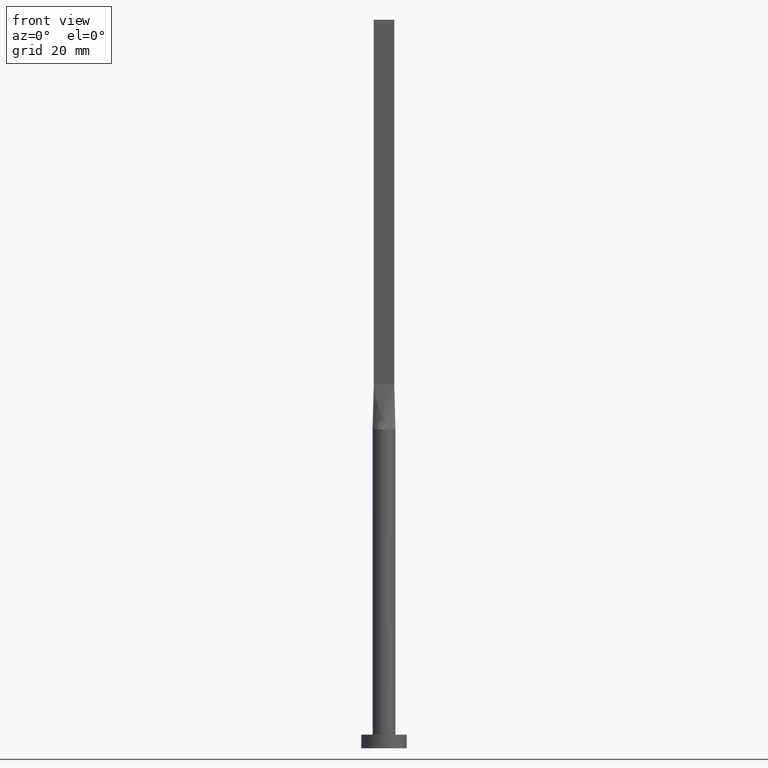
[diagram: clean part render]
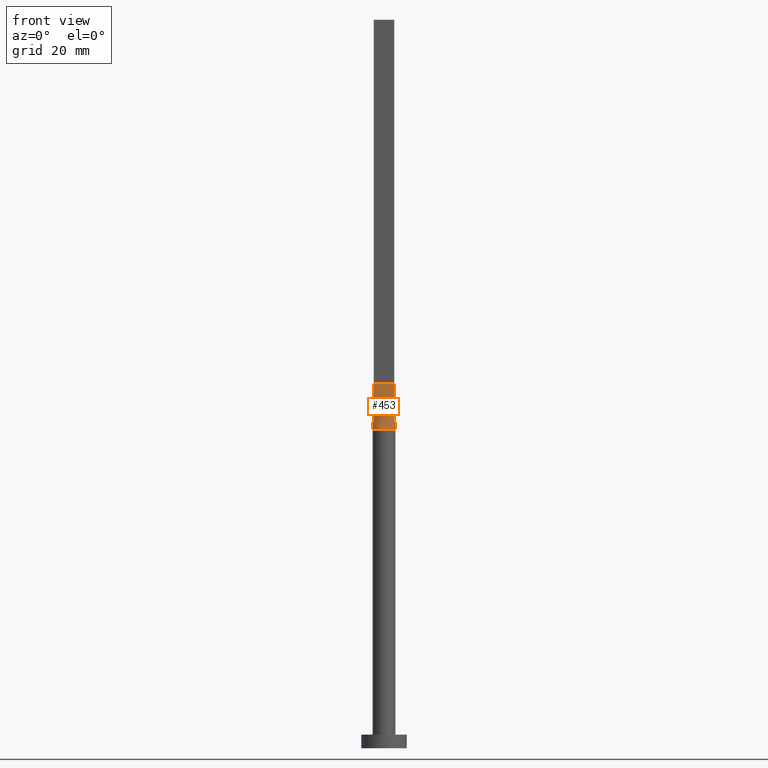
[diagram: same view with one face highlighted and labeled with its STEP entity id]
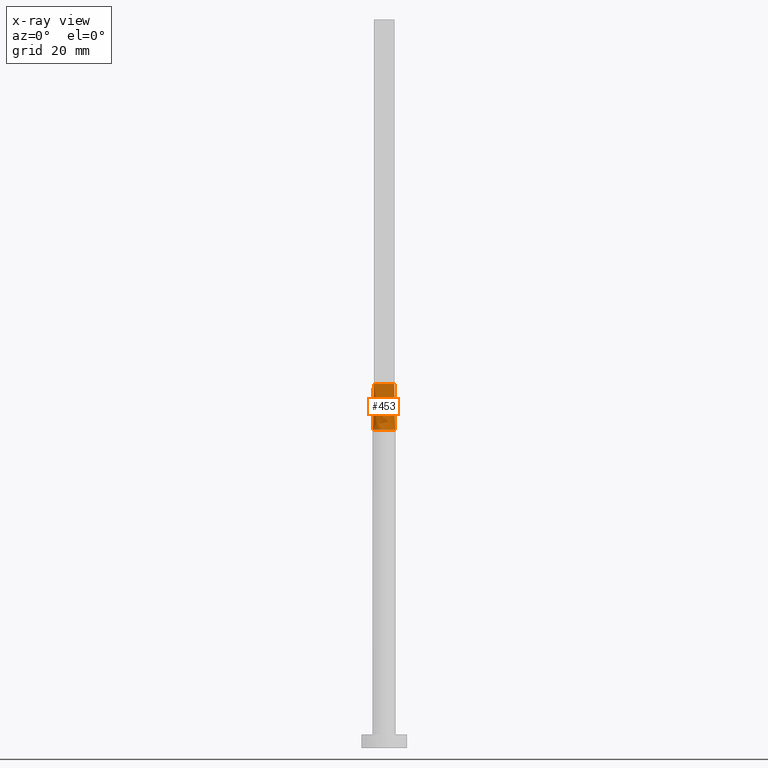
[diagram: x-ray of the same camera — body ghosted, the highlighted face saturated]
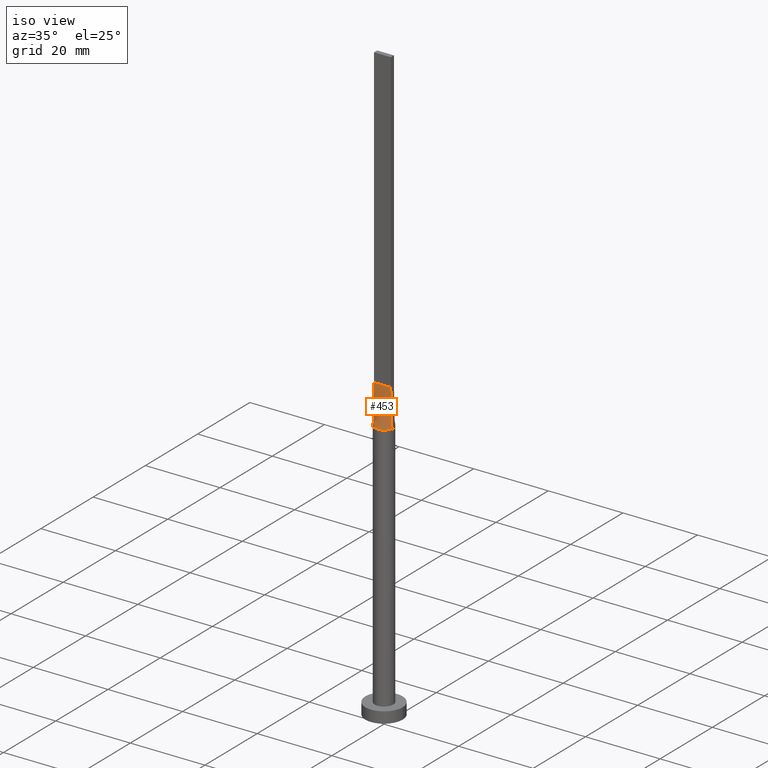
[diagram: same view with one face highlighted and labeled with its STEP entity id]
A machine part, front view. The second image highlights one B-rep face of the part: STEP entity #453.
The next image is the same camera in x-ray: the body ghosted, the highlighted face saturated — about 0% of this face is hidden behind the body in this view.
A second angle (iso view) of the same face is appended — the face is thin or edge-on in the first view.
In plain terms, the highlighted face is a freeform B-spline surface patch.
Its self-contained STEP definition (entity closure, byte-faithful):
#1 = ORIENTED_EDGE ( 'NONE', *, *, #532, .T. ) ;
#12 = CARTESIAN_POINT ( 'NONE',  ( 2.283437435282019479, -1.045786430836911363, 70.00000000000001421 ) ) ;
#24 = CARTESIAN_POINT ( 'NONE',  ( 1.466504377161500727, -2.043814966248090226, 70.00000000000000000 ) ) ;
#31 = ORIENTED_EDGE ( 'NONE', *, *, #506, .T. ) ;
#32 = VECTOR ( 'NONE', #36, 1000.000000000000114 ) ;
#36 = DIRECTION ( 'NONE',  ( -0.01655630387018623695, -0.004415014365382971366, -0.9998531874481929593 ) ) ;
#56 = EDGE_CURVE ( 'NONE', #501, #498, #107, .T. ) ;
#59 = CARTESIAN_POINT ( 'NONE',  ( 0.7499999999999995559, -0.5999999999999996447, 79.99999999999998579 ) ) ;
#68 = CARTESIAN_POINT ( 'NONE',  ( 0.3201159637850000128, -2.500000000000000888, 70.00000000000000000 ) ) ;
#70 = CARTESIAN_POINT ( 'NONE',  ( -0.7500000000000004441, -0.5999999999999994227, 79.99999999999998579 ) ) ;
#75 = LINE ( 'NONE', #390, #32 ) ;
#82 = DIRECTION ( 'NONE',  ( 0.000000000000000000, 0.000000000000000000, 1.000000000000000000 ) ) ;
#102 = CARTESIAN_POINT ( 'NONE',  ( -0.9375000000000004441, -0.5999999999999994227, 79.99999999999998579 ) ) ;
#104 = CARTESIAN_POINT ( 'NONE',  ( -1.312500000000000222, -0.5999999999999994227, 79.99999999999998579 ) ) ;
#105 = CARTESIAN_POINT ( 'NONE',  ( -2.250000000000000000, -0.5999999999999994227, 80.00000000000000000 ) ) ;
#107 = LINE ( 'NONE', #105, #434 ) ;
#109 = CIRCLE ( 'NONE', #530, 2.500000000000000000 ) ;
#110 = CARTESIAN_POINT ( 'NONE',  ( -2.415587349003116113, -0.6441566264008301568, 70.00000000000000000 ) ) ;
#116 = VECTOR ( 'NONE', #265, 1000.000000000000114 ) ;
#124 = EDGE_LOOP ( 'NONE', ( #132, #1, #544, #31 ) ) ;
#128 = CARTESIAN_POINT ( 'NONE',  ( -2.415759998437587708, -0.6442033382925431706, 70.00000000000000000 ) ) ;
#132 = ORIENTED_EDGE ( 'NONE', *, *, #522, .T. ) ;
#134 = B_SPLINE_SURFACE_WITH_KNOTS ( 'NONE', 3, 1, ( 
 ( #110, #149 ),
 ( #159, #504 ),
 ( #330, #332 ),
 ( #472, #507 ),
 ( #243, #104 ),
 ( #202, #102 ),
 ( #286, #70 ),
 ( #204, #380 ),
 ( #249, #291 ),
 ( #68, #559 ),
 ( #509, #253 ),
 ( #426, #59 ),
 ( #24, #200 ),
 ( #556, #154 ),
 ( #515, #464 ),
 ( #12, #335 ),
 ( #251, #548 ),
 ( #470, #512 ) ),
 .UNSPECIFIED., .F., .F., .F.,
 ( 4, 2, 2, 2, 2, 2, 2, 2, 4 ),
 ( 2, 2 ),
 ( 0.000000000000000000, 0.1250000000000000000, 0.2500000000000000000, 0.3750000000000000000, 0.4999999999999999445, 0.6250000000000000000, 0.7500000000000000000, 0.8750000000000000000, 1.000000000000000000 ),
 ( 0.000000000000000000, 1.000000000000000000 ),
 .UNSPECIFIED. ) ;
#149 = CARTESIAN_POINT ( 'NONE',  ( -2.250000000000000000, -0.5999999999999994227, 80.00000000000000000 ) ) ;
#154 = CARTESIAN_POINT ( 'NONE',  ( 1.312499999999999778, -0.5999999999999997558, 79.99999999999998579 ) ) ;
#159 = CARTESIAN_POINT ( 'NONE',  ( -2.363720129086103405, -0.8386587010896268124, 70.00000000000001421 ) ) ;
#188 = VERTEX_POINT ( 'NONE', #128 ) ;
#200 = CARTESIAN_POINT ( 'NONE',  ( 0.9374999999999997780, -0.5999999999999996447, 79.99999999999998579 ) ) ;
#202 = CARTESIAN_POINT ( 'NONE',  ( -1.466504377161501171, -2.043814966248090226, 69.99999999999998579 ) ) ;
#204 = CARTESIAN_POINT ( 'NONE',  ( -0.6394215159088060263, -2.436483607037785326, 70.00000000000001421 ) ) ;
#243 = CARTESIAN_POINT ( 'NONE',  ( -1.880930080310024621, -1.670304384679167420, 70.00000000000000000 ) ) ;
#249 = CARTESIAN_POINT ( 'NONE',  ( -0.3201159637850009565, -2.499999999999999112, 69.99999999999998579 ) ) ;
#251 = CARTESIAN_POINT ( 'NONE',  ( 2.363720129086102961, -0.8386587010896274785, 70.00000000000001421 ) ) ;
#253 = CARTESIAN_POINT ( 'NONE',  ( 0.3749999999999995559, -0.5999999999999996447, 79.99999999999998579 ) ) ;
#259 = DIRECTION ( 'NONE',  ( 1.000000000000000000, 0.000000000000000000, 0.000000000000000000 ) ) ;
#265 = DIRECTION ( 'NONE',  ( -0.01655630387018619185, 0.004415014365382960090, 0.9998531874481929593 ) ) ;
#286 = CARTESIAN_POINT ( 'NONE',  ( -1.212939335911091154, -2.207734225347456558, 70.00000000000001421 ) ) ;
#291 = CARTESIAN_POINT ( 'NONE',  ( -0.1875000000000003886, -0.5999999999999995337, 80.00000000000000000 ) ) ;
#309 = CARTESIAN_POINT ( 'NONE',  ( -2.250000000000000000, -0.5999999999999994227, 80.00000000000000000 ) ) ;
#328 = CARTESIAN_POINT ( 'NONE',  ( 2.415783834663384866, -0.6442097370852554183, 70.00000000000000000 ) ) ;
#330 = CARTESIAN_POINT ( 'NONE',  ( -2.283437435282020811, -1.045786430836910474, 70.00000000000000000 ) ) ;
#332 = CARTESIAN_POINT ( 'NONE',  ( -1.874999999999999778, -0.5999999999999994227, 79.99999999999998579 ) ) ;
#335 = CARTESIAN_POINT ( 'NONE',  ( 1.875000000000000000, -0.5999999999999997558, 79.99999999999998579 ) ) ;
#341 = CARTESIAN_POINT ( 'NONE',  ( 2.250000000000000000, -0.5999999999999997558, 80.00000000000000000 ) ) ;
#347 = LINE ( 'NONE', #525, #116 ) ;
#376 = FACE_OUTER_BOUND ( 'NONE', #124, .T. ) ;
#380 = CARTESIAN_POINT ( 'NONE',  ( -0.3750000000000003886, -0.5999999999999994227, 79.99999999999998579 ) ) ;
#384 = CARTESIAN_POINT ( 'NONE',  ( 0.000000000000000000, 0.000000000000000000, 70.00000000000000000 ) ) ;
#390 = CARTESIAN_POINT ( 'NONE',  ( -2.332793674501557835, -0.6220783132004148452, 75.00000000000001421 ) ) ;
#426 = CARTESIAN_POINT ( 'NONE',  ( 1.212939335911089378, -2.207734225347456558, 69.99999999999998579 ) ) ;
#434 = VECTOR ( 'NONE', #471, 1000.000000000000000 ) ;
#452 = VERTEX_POINT ( 'NONE', #328 ) ;
#453 = ADVANCED_FACE ( 'NONE', ( #376 ), #134, .T. ) ;
#464 = CARTESIAN_POINT ( 'NONE',  ( 1.500000000000000000, -0.5999999999999997558, 79.99999999999998579 ) ) ;
#470 = CARTESIAN_POINT ( 'NONE',  ( 2.415587349003115669, -0.6441566264008303788, 70.00000000000000000 ) ) ;
#471 = DIRECTION ( 'NONE',  ( 1.000000000000000000, -7.228014483236697048E-17, 0.000000000000000000 ) ) ;
#472 = CARTESIAN_POINT ( 'NONE',  ( -2.042400361660746899, -1.461628045180435986, 70.00000000000000000 ) ) ;
#498 = VERTEX_POINT ( 'NONE', #341 ) ;
#501 = VERTEX_POINT ( 'NONE', #309 ) ;
#504 = CARTESIAN_POINT ( 'NONE',  ( -2.062499999999999556, -0.5999999999999994227, 79.99999999999998579 ) ) ;
#506 = EDGE_CURVE ( 'NONE', #501, #188, #75, .T. ) ;
#507 = CARTESIAN_POINT ( 'NONE',  ( -1.500000000000000000, -0.5999999999999994227, 79.99999999999998579 ) ) ;
#509 = CARTESIAN_POINT ( 'NONE',  ( 0.6394215159088044720, -2.436483607037786214, 70.00000000000001421 ) ) ;
#512 = CARTESIAN_POINT ( 'NONE',  ( 2.250000000000000000, -0.5999999999999997558, 80.00000000000000000 ) ) ;
#515 = CARTESIAN_POINT ( 'NONE',  ( 2.042400361660746899, -1.461628045180436652, 70.00000000000001421 ) ) ;
#522 = EDGE_CURVE ( 'NONE', #188, #452, #109, .T. ) ;
#525 = CARTESIAN_POINT ( 'NONE',  ( 2.332793674501557390, -0.6220783132004150673, 75.00000000000001421 ) ) ;
#530 = AXIS2_PLACEMENT_3D ( 'NONE', #384, #82, #259 ) ;
#532 = EDGE_CURVE ( 'NONE', #452, #498, #347, .T. ) ;
#544 = ORIENTED_EDGE ( 'NONE', *, *, #56, .F. ) ;
#548 = CARTESIAN_POINT ( 'NONE',  ( 2.062500000000000000, -0.5999999999999997558, 79.99999999999998579 ) ) ;
#556 = CARTESIAN_POINT ( 'NONE',  ( 1.880930080310023511, -1.670304384679167864, 69.99999999999998579 ) ) ;
#559 = CARTESIAN_POINT ( 'NONE',  ( 0.1874999999999995837, -0.5999999999999996447, 79.99999999999998579 ) ) ;